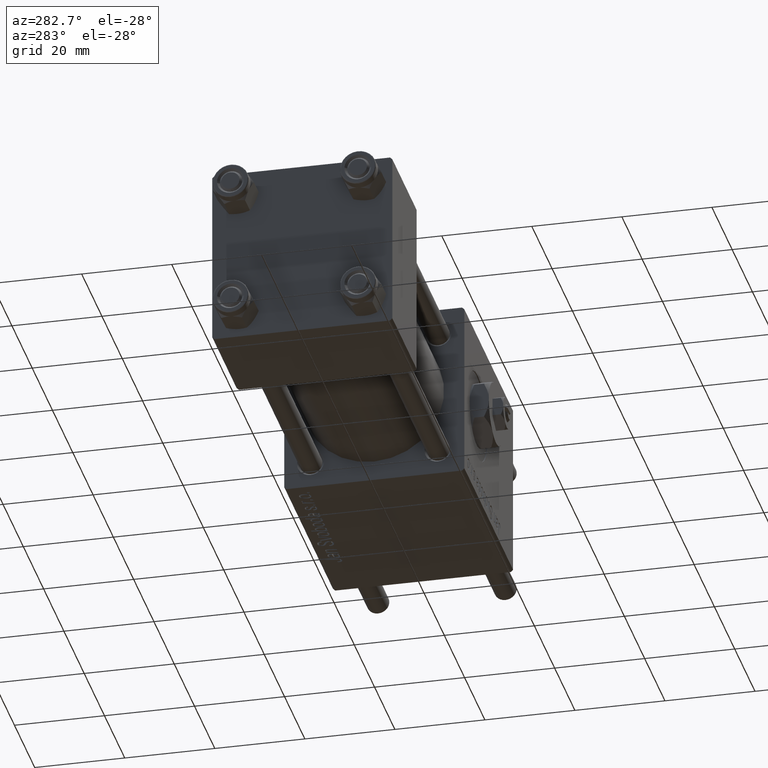
[diagram: clean part render]
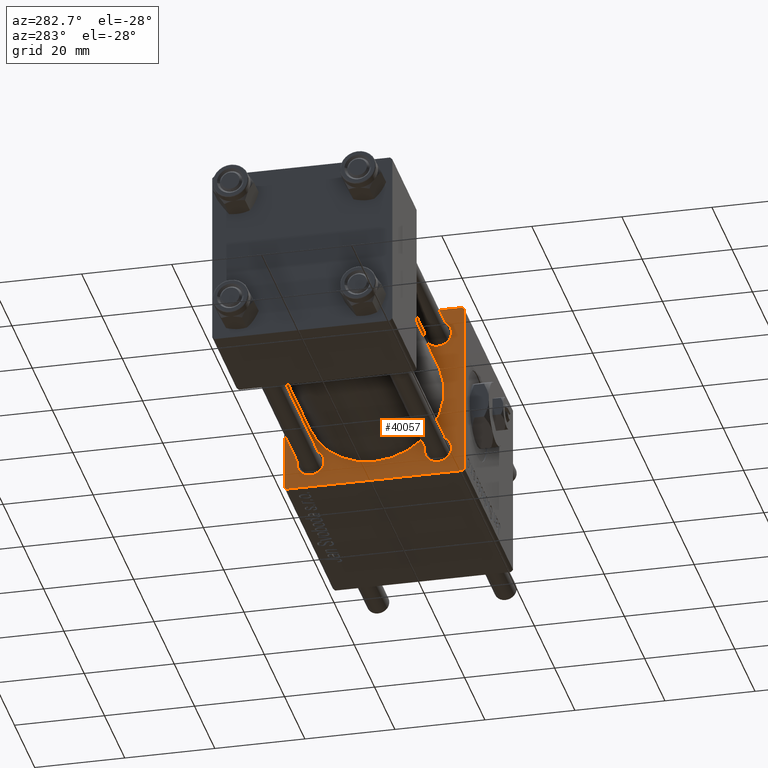
[diagram: same view with one face highlighted and labeled with its STEP entity id]
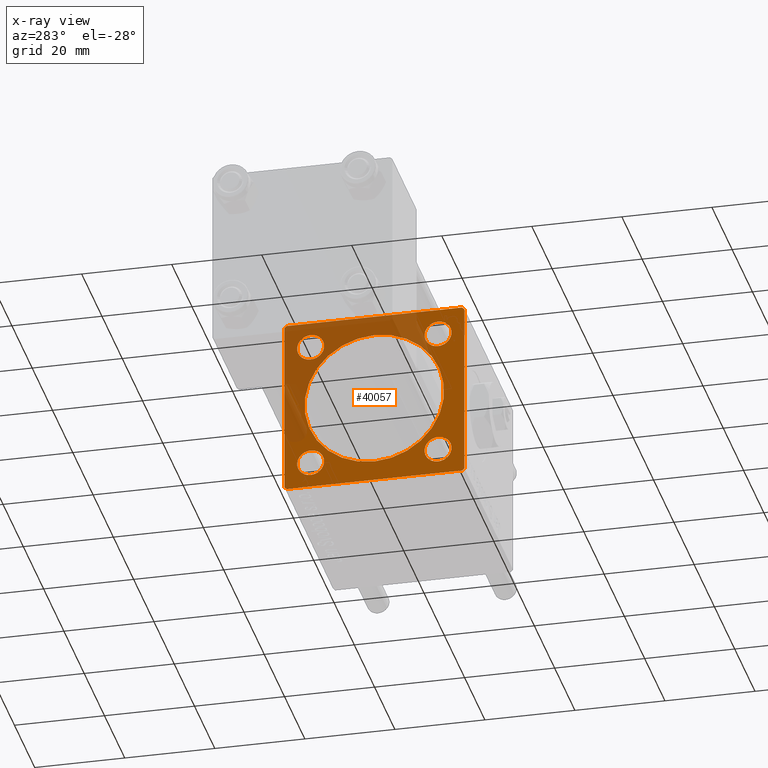
[diagram: x-ray of the same camera — body ghosted, the highlighted face saturated]
A machine part, auxiliary view. The second image highlights one B-rep face of the part: STEP entity #40057.
The next image is the same camera in x-ray: the body ghosted, the highlighted face saturated — about 38% of this face is hidden behind the body in this view.
In plain terms, the highlighted planar face has unit normal (-1, 0, 0).
Its self-contained STEP definition (entity closure, byte-faithful):
#156 = ORIENTED_EDGE ( 'NONE', *, *, #23817, .F. ) ;
#432 = EDGE_CURVE ( 'NONE', #37512, #746, #1448, .T. ) ;
#733 = DIRECTION ( 'NONE',  ( 0.000000000000000000, 0.000000000000000000, 1.000000000000000000 ) ) ;
#746 = VERTEX_POINT ( 'NONE', #47087 ) ;
#1315 = CARTESIAN_POINT ( 'NONE',  ( 71.00000000000001421, 14.15000000000000036, -11.15000000000002522 ) ) ;
#1448 = CIRCLE ( 'NONE', #2361, 15.50000000000000000 ) ;
#1477 = DIRECTION ( 'NONE',  ( 0.000000000000000000, 0.000000000000000000, -1.000000000000000000 ) ) ;
#1860 = LINE ( 'NONE', #38911, #29173 ) ;
#2268 = FACE_BOUND ( 'NONE', #40464, .T. ) ;
#2361 = AXIS2_PLACEMENT_3D ( 'NONE', #9493, #55149, #1477 ) ;
#2961 = DIRECTION ( 'NONE',  ( 0.000000000000000000, 0.000000000000000000, -1.000000000000000000 ) ) ;
#3144 = AXIS2_PLACEMENT_3D ( 'NONE', #6138, #56220, #47620 ) ;
#3370 = ORIENTED_EDGE ( 'NONE', *, *, #22889, .T. ) ;
#3797 = CARTESIAN_POINT ( 'NONE',  ( 71.00000000000001421, -19.50000000000001776, 19.99999999999999645 ) ) ;
#4270 = ORIENTED_EDGE ( 'NONE', *, *, #39107, .T. ) ;
#5156 = EDGE_CURVE ( 'NONE', #39662, #48237, #23219, .T. ) ;
#5950 = AXIS2_PLACEMENT_3D ( 'NONE', #34101, #17215, #57528 ) ;
#6138 = CARTESIAN_POINT ( 'NONE',  ( 71.00000000000001421, 14.15000000000000036, 14.15000000000000036 ) ) ;
#6868 = ORIENTED_EDGE ( 'NONE', *, *, #31001, .T. ) ;
#7211 = CARTESIAN_POINT ( 'NONE',  ( 71.00000000000001421, 14.15000000000000036, 14.15000000000000036 ) ) ;
#8114 = CARTESIAN_POINT ( 'NONE',  ( 71.00000000000001421, 14.15000000000000036, 17.15000000000000568 ) ) ;
#8447 = VERTEX_POINT ( 'NONE', #3797 ) ;
#8484 = DIRECTION ( 'NONE',  ( -1.000000000000000000, 0.000000000000000000, -0.000000000000000000 ) ) ;
#9056 = CARTESIAN_POINT ( 'NONE',  ( 71.00000000000001421, 14.15000000000000036, -14.15000000000000036 ) ) ;
#9419 = CARTESIAN_POINT ( 'NONE',  ( 71.00000000000001421, -14.15000000000000036, 14.15000000000000036 ) ) ;
#9493 = CARTESIAN_POINT ( 'NONE',  ( 71.00000000000001421, -2.602085213965210642E-15, 0.000000000000000000 ) ) ;
#10306 = FACE_BOUND ( 'NONE', #54729, .T. ) ;
#10328 = DIRECTION ( 'NONE',  ( 0.000000000000000000, 8.673617379884036705E-17, -1.000000000000000000 ) ) ;
#10465 = VERTEX_POINT ( 'NONE', #23436 ) ;
#11571 = CIRCLE ( 'NONE', #46639, 2.999999999999976463 ) ;
#12627 = CARTESIAN_POINT ( 'NONE',  ( 71.00000000000001421, -14.15000000000000036, 17.15000000000000568 ) ) ;
#12888 = VERTEX_POINT ( 'NONE', #1315 ) ;
#12943 = CARTESIAN_POINT ( 'NONE',  ( 71.00000000000001421, 0.000000000000000000, 0.000000000000000000 ) ) ;
#13566 = EDGE_CURVE ( 'NONE', #56198, #34737, #54718, .T. ) ;
#13594 = DIRECTION ( 'NONE',  ( 1.000000000000000000, 0.000000000000000000, 0.000000000000000000 ) ) ;
#14121 = EDGE_CURVE ( 'NONE', #30931, #26310, #50030, .T. ) ;
#15193 = EDGE_CURVE ( 'NONE', #48237, #51312, #56689, .T. ) ;
#15217 = EDGE_CURVE ( 'NONE', #10465, #45829, #1860, .T. ) ;
#15394 = AXIS2_PLACEMENT_3D ( 'NONE', #16819, #25700, #48540 ) ;
#15500 = DIRECTION ( 'NONE',  ( -0.000000000000000000, -0.7071067811865474617, -0.7071067811865474617 ) ) ;
#15616 = FACE_BOUND ( 'NONE', #16524, .T. ) ;
#15762 = CARTESIAN_POINT ( 'NONE',  ( 71.00000000000001421, 19.99999999999999645, -20.00000000000000000 ) ) ;
#16200 = DIRECTION ( 'NONE',  ( -0.000000000000000000, 0.000000000000000000, 1.000000000000000000 ) ) ;
#16524 = EDGE_LOOP ( 'NONE', ( #34774, #40939 ) ) ;
#16819 = CARTESIAN_POINT ( 'NONE',  ( 71.00000000000001421, -14.15000000000000036, -14.15000000000000036 ) ) ;
#17215 = DIRECTION ( 'NONE',  ( 1.000000000000000000, 0.000000000000000000, 0.000000000000000000 ) ) ;
#19252 = EDGE_CURVE ( 'NONE', #40069, #12888, #21641, .T. ) ;
#19310 = VERTEX_POINT ( 'NONE', #28290 ) ;
#20101 = CARTESIAN_POINT ( 'NONE',  ( 71.00000000000001421, -14.15000000000000036, -14.15000000000000036 ) ) ;
#20348 = PLANE ( 'NONE',  #49185 ) ;
#20967 = LINE ( 'NONE', #38765, #26529 ) ;
#21091 = AXIS2_PLACEMENT_3D ( 'NONE', #34386, #42700, #2961 ) ;
#21162 = LINE ( 'NONE', #39254, #58651 ) ;
#21641 = CIRCLE ( 'NONE', #26390, 2.999999999999976463 ) ;
#21966 = ORIENTED_EDGE ( 'NONE', *, *, #432, .T. ) ;
#22341 = ORIENTED_EDGE ( 'NONE', *, *, #5156, .T. ) ;
#22361 = CARTESIAN_POINT ( 'NONE',  ( 71.00000000000001421, -14.15000000000000036, -11.15000000000002522 ) ) ;
#22889 = EDGE_CURVE ( 'NONE', #22946, #8447, #21162, .T. ) ;
#22946 = VERTEX_POINT ( 'NONE', #35696 ) ;
#23055 = CIRCLE ( 'NONE', #3144, 3.000000000000000888 ) ;
#23219 = LINE ( 'NONE', #50501, #41230 ) ;
#23436 = CARTESIAN_POINT ( 'NONE',  ( 71.00000000000001421, -19.50000000000002487, -20.00000000000000000 ) ) ;
#23817 = EDGE_CURVE ( 'NONE', #19310, #8447, #35099, .T. ) ;
#25140 = CARTESIAN_POINT ( 'NONE',  ( 71.00000000000001421, -2.602085213965210642E-15, 15.50000000000000000 ) ) ;
#25259 = CARTESIAN_POINT ( 'NONE',  ( 71.00000000000001421, 19.74999999999999645, -19.74999999999999645 ) ) ;
#25700 = DIRECTION ( 'NONE',  ( 1.000000000000000000, 0.000000000000000000, 0.000000000000000000 ) ) ;
#25718 = EDGE_LOOP ( 'NONE', ( #21966, #56316 ) ) ;
#26198 = CARTESIAN_POINT ( 'NONE',  ( 71.00000000000001421, 19.99999999999999645, 20.00000000000000000 ) ) ;
#26310 = VERTEX_POINT ( 'NONE', #38813 ) ;
#26390 = AXIS2_PLACEMENT_3D ( 'NONE', #9056, #27131, #733 ) ;
#26440 = CIRCLE ( 'NONE', #45381, 3.000000000000004441 ) ;
#26529 = VECTOR ( 'NONE', #48244, 999.9999999999998863 ) ;
#26616 = DIRECTION ( 'NONE',  ( 0.000000000000000000, 0.000000000000000000, 1.000000000000000000 ) ) ;
#26789 = DIRECTION ( 'NONE',  ( 0.000000000000000000, 0.000000000000000000, -1.000000000000000000 ) ) ;
#27131 = DIRECTION ( 'NONE',  ( 1.000000000000000000, 0.000000000000000000, 0.000000000000000000 ) ) ;
#27267 = CARTESIAN_POINT ( 'NONE',  ( 71.00000000000001421, -14.15000000000000036, -17.14999999999997726 ) ) ;
#27907 = ORIENTED_EDGE ( 'NONE', *, *, #15193, .T. ) ;
#28290 = CARTESIAN_POINT ( 'NONE',  ( 71.00000000000001421, 19.49999999999996803, 20.00000000000000000 ) ) ;
#28386 = FACE_BOUND ( 'NONE', #57111, .T. ) ;
#28488 = ORIENTED_EDGE ( 'NONE', *, *, #19252, .T. ) ;
#29173 = VECTOR ( 'NONE', #56397, 999.9999999999998863 ) ;
#30931 = VERTEX_POINT ( 'NONE', #8114 ) ;
#31001 = EDGE_CURVE ( 'NONE', #12888, #40069, #55179, .T. ) ;
#32156 = VECTOR ( 'NONE', #35022, 1000.000000000000000 ) ;
#32858 = LINE ( 'NONE', #50955, #36273 ) ;
#33690 = FACE_BOUND ( 'NONE', #25718, .T. ) ;
#34101 = CARTESIAN_POINT ( 'NONE',  ( 71.00000000000001421, 14.15000000000000036, -14.15000000000000036 ) ) ;
#34272 = CARTESIAN_POINT ( 'NONE',  ( 71.00000000000001421, 14.15000000000000036, -17.14999999999997726 ) ) ;
#34386 = CARTESIAN_POINT ( 'NONE',  ( 71.00000000000001421, -2.602085213965210642E-15, 0.000000000000000000 ) ) ;
#34486 = DIRECTION ( 'NONE',  ( 1.000000000000000000, 0.000000000000000000, 0.000000000000000000 ) ) ;
#34507 = DIRECTION ( 'NONE',  ( -0.000000000000000000, 0.7071067811865573427, 0.7071067811865376918 ) ) ;
#34737 = VERTEX_POINT ( 'NONE', #41288 ) ;
#34774 = ORIENTED_EDGE ( 'NONE', *, *, #53444, .T. ) ;
#35022 = DIRECTION ( 'NONE',  ( 0.000000000000000000, -1.000000000000000000, 0.000000000000000000 ) ) ;
#35099 = LINE ( 'NONE', #26198, #37866 ) ;
#35284 = CIRCLE ( 'NONE', #21091, 15.50000000000000000 ) ;
#35696 = CARTESIAN_POINT ( 'NONE',  ( 71.00000000000001421, -20.00000000000000355, 19.50000000000002487 ) ) ;
#36273 = VECTOR ( 'NONE', #10328, 1000.000000000000000 ) ;
#37512 = VERTEX_POINT ( 'NONE', #25140 ) ;
#37667 = AXIS2_PLACEMENT_3D ( 'NONE', #45302, #54185, #26616 ) ;
#37866 = VECTOR ( 'NONE', #44291, 1000.000000000000000 ) ;
#38543 = EDGE_CURVE ( 'NONE', #26310, #30931, #23055, .T. ) ;
#38590 = LINE ( 'NONE', #15762, #32156 ) ;
#38765 = CARTESIAN_POINT ( 'NONE',  ( 71.00000000000001421, 19.74999999999971578, 19.75000000000026290 ) ) ;
#38813 = CARTESIAN_POINT ( 'NONE',  ( 71.00000000000001421, 14.15000000000000036, 11.14999999999999858 ) ) ;
#38911 = CARTESIAN_POINT ( 'NONE',  ( 71.00000000000001421, -19.75000000000028066, -19.74999999999973355 ) ) ;
#39107 = EDGE_CURVE ( 'NONE', #34737, #56198, #26440, .T. ) ;
#39254 = CARTESIAN_POINT ( 'NONE',  ( 71.00000000000001421, -19.74999999999973710, 19.75000000000028422 ) ) ;
#39662 = VERTEX_POINT ( 'NONE', #49321 ) ;
#40057 = ADVANCED_FACE ( 'NONE', ( #2268, #10306, #28386, #15616, #33690, #51781 ), #20348, .T. ) ;
#40069 = VERTEX_POINT ( 'NONE', #34272 ) ;
#40464 = EDGE_LOOP ( 'NONE', ( #44586, #4270 ) ) ;
#40636 = EDGE_CURVE ( 'NONE', #51312, #10465, #38590, .T. ) ;
#40874 = CARTESIAN_POINT ( 'NONE',  ( 71.00000000000001421, 19.49999999999999645, -20.00000000000000000 ) ) ;
#40939 = ORIENTED_EDGE ( 'NONE', *, *, #54441, .T. ) ;
#41230 = VECTOR ( 'NONE', #26789, 1000.000000000000000 ) ;
#41288 = CARTESIAN_POINT ( 'NONE',  ( 71.00000000000001421, -14.15000000000000036, 11.14999999999999858 ) ) ;
#42289 = CARTESIAN_POINT ( 'NONE',  ( 71.00000000000001421, -20.00000000000000000, -19.50000000000001066 ) ) ;
#42526 = VERTEX_POINT ( 'NONE', #22361 ) ;
#42700 = DIRECTION ( 'NONE',  ( 1.000000000000000000, 0.000000000000000000, 0.000000000000000000 ) ) ;
#43085 = EDGE_CURVE ( 'NONE', #19310, #39662, #20967, .T. ) ;
#43336 = ORIENTED_EDGE ( 'NONE', *, *, #15217, .T. ) ;
#43508 = DIRECTION ( 'NONE',  ( 0.000000000000000000, 0.000000000000000000, 1.000000000000000000 ) ) ;
#44291 = DIRECTION ( 'NONE',  ( 0.000000000000000000, -1.000000000000000000, -8.673617379884035472E-17 ) ) ;
#44586 = ORIENTED_EDGE ( 'NONE', *, *, #13566, .T. ) ;
#44643 = ORIENTED_EDGE ( 'NONE', *, *, #51789, .F. ) ;
#44844 = VERTEX_POINT ( 'NONE', #27267 ) ;
#45302 = CARTESIAN_POINT ( 'NONE',  ( 71.00000000000001421, -14.15000000000000036, 14.15000000000000036 ) ) ;
#45381 = AXIS2_PLACEMENT_3D ( 'NONE', #9419, #13594, #54779 ) ;
#45829 = VERTEX_POINT ( 'NONE', #42289 ) ;
#46639 = AXIS2_PLACEMENT_3D ( 'NONE', #20101, #56554, #43508 ) ;
#47087 = CARTESIAN_POINT ( 'NONE',  ( 71.00000000000001421, -7.038826752868131828E-16, -15.50000000000000000 ) ) ;
#47174 = VECTOR ( 'NONE', #15500, 1000.000000000000114 ) ;
#47620 = DIRECTION ( 'NONE',  ( 0.000000000000000000, 0.000000000000000000, 1.000000000000000000 ) ) ;
#48237 = VERTEX_POINT ( 'NONE', #54555 ) ;
#48244 = DIRECTION ( 'NONE',  ( 0.000000000000000000, 0.7071067811865574537, -0.7071067811865376918 ) ) ;
#48540 = DIRECTION ( 'NONE',  ( 0.000000000000000000, 0.000000000000000000, 1.000000000000000000 ) ) ;
#49185 = AXIS2_PLACEMENT_3D ( 'NONE', #12943, #8484, #16200 ) ;
#49321 = CARTESIAN_POINT ( 'NONE',  ( 71.00000000000001421, 19.99999999999999645, 19.49999999999998579 ) ) ;
#50030 = CIRCLE ( 'NONE', #56643, 3.000000000000000888 ) ;
#50501 = CARTESIAN_POINT ( 'NONE',  ( 71.00000000000001421, 19.99999999999999645, 20.00000000000000000 ) ) ;
#50522 = ORIENTED_EDGE ( 'NONE', *, *, #38543, .T. ) ;
#50955 = CARTESIAN_POINT ( 'NONE',  ( 71.00000000000001421, -20.00000000000000355, 19.99999999999999645 ) ) ;
#51312 = VERTEX_POINT ( 'NONE', #40874 ) ;
#51713 = ORIENTED_EDGE ( 'NONE', *, *, #40636, .T. ) ;
#51781 = FACE_OUTER_BOUND ( 'NONE', #53522, .T. ) ;
#51789 = EDGE_CURVE ( 'NONE', #22946, #45829, #32858, .T. ) ;
#52570 = DIRECTION ( 'NONE',  ( 0.000000000000000000, 0.000000000000000000, 1.000000000000000000 ) ) ;
#53444 = EDGE_CURVE ( 'NONE', #42526, #44844, #11571, .T. ) ;
#53522 = EDGE_LOOP ( 'NONE', ( #51713, #43336, #44643, #3370, #156, #56672, #22341, #27907 ) ) ;
#54185 = DIRECTION ( 'NONE',  ( 1.000000000000000000, 0.000000000000000000, 0.000000000000000000 ) ) ;
#54248 = ORIENTED_EDGE ( 'NONE', *, *, #14121, .T. ) ;
#54441 = EDGE_CURVE ( 'NONE', #44844, #42526, #55142, .T. ) ;
#54555 = CARTESIAN_POINT ( 'NONE',  ( 71.00000000000001421, 19.99999999999999645, -19.50000000000000000 ) ) ;
#54718 = CIRCLE ( 'NONE', #37667, 3.000000000000004441 ) ;
#54729 = EDGE_LOOP ( 'NONE', ( #54248, #50522 ) ) ;
#54779 = DIRECTION ( 'NONE',  ( 0.000000000000000000, 0.000000000000000000, 1.000000000000000000 ) ) ;
#54909 = EDGE_CURVE ( 'NONE', #746, #37512, #35284, .T. ) ;
#55142 = CIRCLE ( 'NONE', #15394, 2.999999999999976463 ) ;
#55149 = DIRECTION ( 'NONE',  ( 1.000000000000000000, 0.000000000000000000, 0.000000000000000000 ) ) ;
#55179 = CIRCLE ( 'NONE', #5950, 2.999999999999976463 ) ;
#56198 = VERTEX_POINT ( 'NONE', #12627 ) ;
#56220 = DIRECTION ( 'NONE',  ( 1.000000000000000000, 0.000000000000000000, 0.000000000000000000 ) ) ;
#56316 = ORIENTED_EDGE ( 'NONE', *, *, #54909, .T. ) ;
#56397 = DIRECTION ( 'NONE',  ( 0.000000000000000000, -0.7071067811865376918, 0.7071067811865574537 ) ) ;
#56554 = DIRECTION ( 'NONE',  ( 1.000000000000000000, 0.000000000000000000, 0.000000000000000000 ) ) ;
#56643 = AXIS2_PLACEMENT_3D ( 'NONE', #7211, #34486, #52570 ) ;
#56672 = ORIENTED_EDGE ( 'NONE', *, *, #43085, .T. ) ;
#56689 = LINE ( 'NONE', #25259, #47174 ) ;
#57111 = EDGE_LOOP ( 'NONE', ( #6868, #28488 ) ) ;
#57528 = DIRECTION ( 'NONE',  ( 0.000000000000000000, 0.000000000000000000, 1.000000000000000000 ) ) ;
#58651 = VECTOR ( 'NONE', #34507, 1000.000000000000114 ) ;